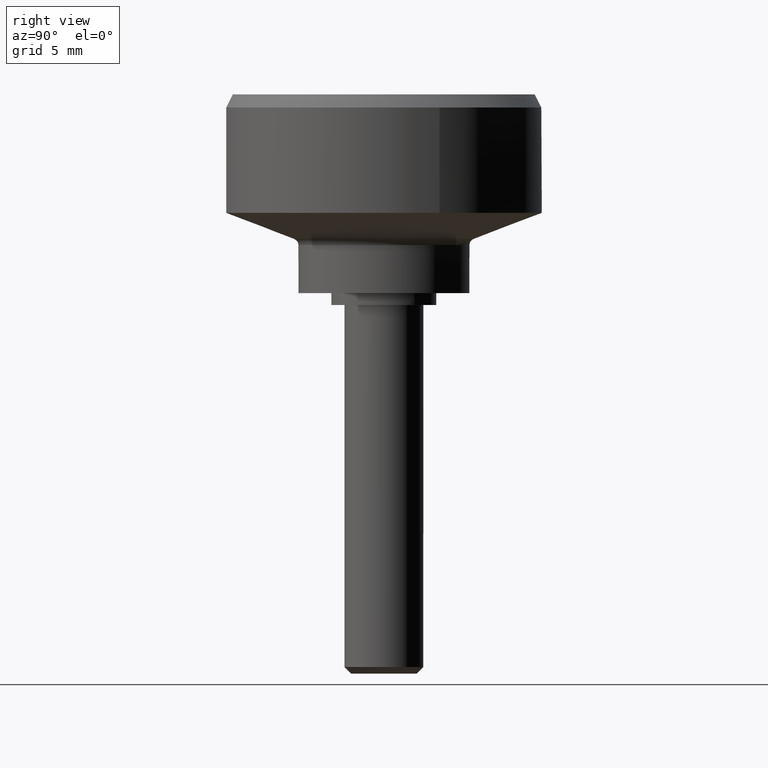
[diagram: clean part render]
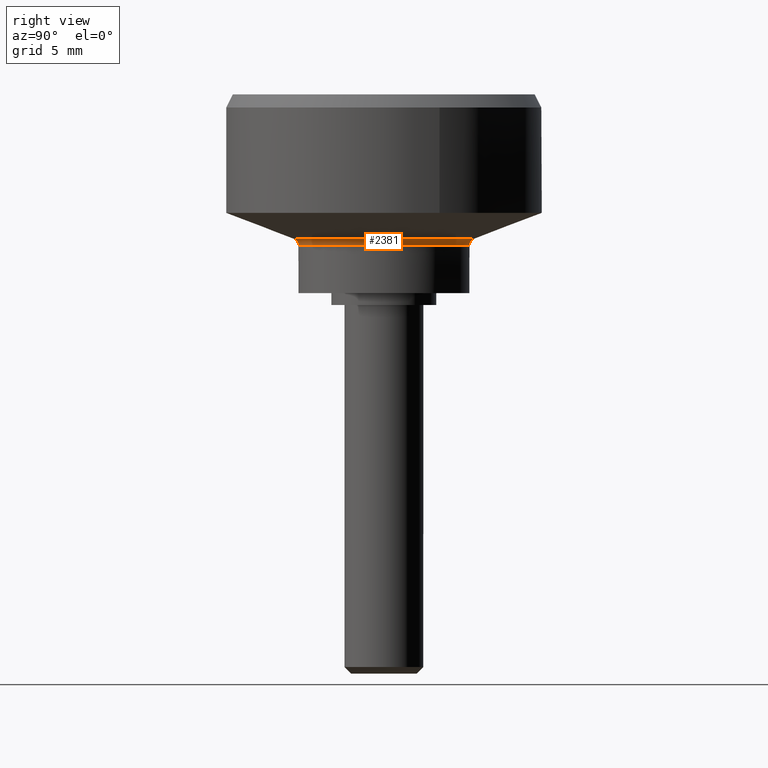
[diagram: same view with one face highlighted and labeled with its STEP entity id]
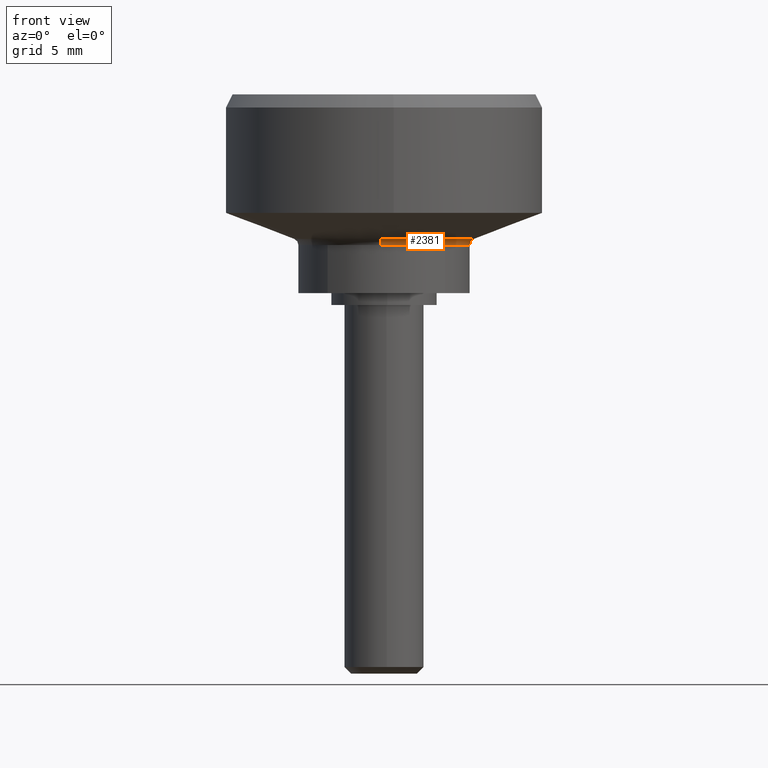
[diagram: same view with one face highlighted and labeled with its STEP entity id]
A machine part, right view. The second image highlights one B-rep face of the part: STEP entity #2381.
A second angle (front view) of the same face is appended — the face is thin or edge-on in the first view.
In plain terms, the highlighted face is a freeform B-spline surface patch.
Its self-contained STEP definition (entity closure, byte-faithful):
#1480=CARTESIAN_POINT('',(-0.126900594161150,6.498761131108108,4.555701999863015));
#1481=VERTEX_POINT('',#1480);
#1495=CARTESIAN_POINT('',(6.500000000000000,0.0,4.555701999999901));
#1496=VERTEX_POINT('',#1495);
#1497=CARTESIAN_POINT('',(-0.126900594161150,6.498761131108108,4.555701999863016));
#1498=CARTESIAN_POINT('',(-0.063456344323026,6.500000000000000,4.555701999999901));
#1499=CARTESIAN_POINT('',(0.0,6.500000000000000,4.555701999999901));
#1500=CARTESIAN_POINT('',(6.500000000000000,6.500000000000000,4.555701999999900));
#1501=CARTESIAN_POINT('',(6.500000000000000,0.0,4.555701999999901));
#1509=(BOUNDED_CURVE()B_SPLINE_CURVE(2,(#1497,#1498,#1499,#1500,#1501),.UNSPECIFIED.,.F.,.U.)B_SPLINE_CURVE_WITH_KNOTS((3,2,3),(0.246562331022470,0.250000000000000,0.500000000000000),.UNSPECIFIED.)CURVE()GEOMETRIC_REPRESENTATION_ITEM()RATIONAL_B_SPLINE_CURVE((0.992055801680602,0.995972520271824,1.0,0.707106781186547,1.0))REPRESENTATION_ITEM(''));
#1510=EDGE_CURVE('',#1481,#1496,#1509,.T.);
#1512=CARTESIAN_POINT('',(4.636128021058326,-4.555910114604740,4.555701999999904));
#1513=VERTEX_POINT('',#1512);
#1514=CARTESIAN_POINT('',(6.500000000000000,0.0,4.555701999999901));
#1515=CARTESIAN_POINT('',(6.500000000000000,-2.659220040137295,4.555701999999902));
#1516=CARTESIAN_POINT('',(4.636128021058326,-4.555910114604741,4.555701999999903));
#1524=(BOUNDED_CURVE()B_SPLINE_CURVE(2,(#1514,#1515,#1516),.UNSPECIFIED.,.F.,.U.)B_SPLINE_CURVE_WITH_KNOTS((3,3),(0.500000000000000,0.623683235681853),.UNSPECIFIED.)CURVE()GEOMETRIC_REPRESENTATION_ITEM()RATIONAL_B_SPLINE_CURVE((1.0,0.855096075951517,0.853569641417545))REPRESENTATION_ITEM(''));
#1525=EDGE_CURVE('',#1496,#1513,#1524,.T.);
#1597=CARTESIAN_POINT('',(-0.244986187355833,-6.495381572163781,4.555701999859737));
#1598=VERTEX_POINT('',#1597);
#1599=CARTESIAN_POINT('',(4.636128021058326,-4.555910114604741,4.555701999999903));
#1600=CARTESIAN_POINT('',(2.725676381799573,-6.500000000000000,4.555701999999900));
#1601=CARTESIAN_POINT('',(0.0,-6.500000000000000,4.555701999999901));
#1602=CARTESIAN_POINT('',(-0.122536626491362,-6.500000000000000,4.555701999999901));
#1603=CARTESIAN_POINT('',(-0.244986187355833,-6.495381572163781,4.555701999859737));
#1611=(BOUNDED_CURVE()B_SPLINE_CURVE(2,(#1599,#1600,#1601,#1602,#1603),.UNSPECIFIED.,.F.,.U.)B_SPLINE_CURVE_WITH_KNOTS((3,2,3),(0.623683235681853,0.750000000000000,0.756613471417402),.UNSPECIFIED.)CURVE()GEOMETRIC_REPRESENTATION_ITEM()RATIONAL_B_SPLINE_CURVE((0.853569641417545,0.852010705235031,1.0,0.992251836276106,0.984913610626814))REPRESENTATION_ITEM(''));
#1612=EDGE_CURVE('',#1513,#1598,#1611,.T.);
#1672=CARTESIAN_POINT('',(4.694013445308249,4.946458076466312,5.021860733314311));
#1673=VERTEX_POINT('',#1672);
#1679=CARTESIAN_POINT('',(-0.133131989355560,6.817879777029487,5.021860706398572));
#1680=VERTEX_POINT('',#1679);
#1681=CARTESIAN_POINT('',(-0.133131989355560,6.817879777029487,5.021860706398573));
#1682=CARTESIAN_POINT('',(-0.066572339783741,6.819179549401331,5.021860733314310));
#1683=CARTESIAN_POINT('',(0.0,6.819179549401331,5.021860733314310));
#1684=CARTESIAN_POINT('',(2.720576776943343,6.819179549401332,5.021860733314311));
#1685=CARTESIAN_POINT('',(4.694013445308250,4.946458076466312,5.021860733314311));
#1693=(BOUNDED_CURVE()B_SPLINE_CURVE(2,(#1681,#1682,#1683,#1684,#1685),.UNSPECIFIED.,.F.,.U.)B_SPLINE_CURVE_WITH_KNOTS((3,2,3),(0.246562330997886,0.250000000000000,0.371049526659110),.UNSPECIFIED.)CURVE()GEOMETRIC_REPRESENTATION_ITEM()RATIONAL_B_SPLINE_CURVE((0.992055801624584,0.995972520243023,1.0,0.858181658003873,0.853699661369434))REPRESENTATION_ITEM(''));
#1694=EDGE_CURVE('',#1680,#1673,#1693,.T.);
#1711=CARTESIAN_POINT('',(-0.257016120606417,-6.814334266405956,5.021860706397108));
#1712=VERTEX_POINT('',#1711);
#1726=CARTESIAN_POINT('',(4.946458076466313,-4.694013445308249,5.021860733314311));
#1727=VERTEX_POINT('',#1726);
#1728=CARTESIAN_POINT('',(4.946458076466313,-4.694013445308249,5.021860733314311));
#1729=CARTESIAN_POINT('',(2.929750745297536,-6.819179549401330,5.021860733314310));
#1730=CARTESIAN_POINT('',(0.0,-6.819179549401331,5.021860733314310));
#1731=CARTESIAN_POINT('',(-0.128553732256057,-6.819179549401331,5.021860733314311));
#1732=CARTESIAN_POINT('',(-0.257016120606417,-6.814334266405956,5.021860706397109));
#1740=(BOUNDED_CURVE()B_SPLINE_CURVE(2,(#1728,#1729,#1730,#1731,#1732),.UNSPECIFIED.,.F.,.U.)B_SPLINE_CURVE_WITH_KNOTS((3,2,3),(0.621049526659110,0.750000000000000,0.756613471435008),.UNSPECIFIED.)CURVE()GEOMETRIC_REPRESENTATION_ITEM()RATIONAL_B_SPLINE_CURVE((0.853699661369434,0.848925123182674,1.0,0.992251836255479,0.984913610587743))REPRESENTATION_ITEM(''));
#1741=EDGE_CURVE('',#1727,#1712,#1740,.T.);
#1841=CARTESIAN_POINT('',(6.819179549401331,0.0,5.021860733314310));
#1842=VERTEX_POINT('',#1841);
#1843=CARTESIAN_POINT('',(6.819179549401331,0.0,5.021860733314310));
#1844=CARTESIAN_POINT('',(6.819179549401332,-2.720576776943322,5.021860733314310));
#1845=CARTESIAN_POINT('',(4.946458076466313,-4.694013445308249,5.021860733314311));
#1853=(BOUNDED_CURVE()B_SPLINE_CURVE(2,(#1843,#1844,#1845),.UNSPECIFIED.,.F.,.U.)B_SPLINE_CURVE_WITH_KNOTS((3,3),(0.500000000000000,0.621049526659109),.UNSPECIFIED.)CURVE()GEOMETRIC_REPRESENTATION_ITEM()RATIONAL_B_SPLINE_CURVE((1.0,0.858181658003874,0.853699661369434))REPRESENTATION_ITEM(''));
#1854=EDGE_CURVE('',#1842,#1727,#1853,.T.);
#1856=CARTESIAN_POINT('',(4.694013445308249,4.946458076466313,5.021860733314311));
#1857=CARTESIAN_POINT('',(6.819179549401330,2.929750745297536,5.021860733314310));
#1858=CARTESIAN_POINT('',(6.819179549401331,0.0,5.021860733314310));
#1866=(BOUNDED_CURVE()B_SPLINE_CURVE(2,(#1856,#1857,#1858),.UNSPECIFIED.,.F.,.U.)B_SPLINE_CURVE_WITH_KNOTS((3,3),(0.371049526659110,0.500000000000000),.UNSPECIFIED.)CURVE()GEOMETRIC_REPRESENTATION_ITEM()RATIONAL_B_SPLINE_CURVE((0.853699661369434,0.848925123182674,1.0))REPRESENTATION_ITEM(''));
#1867=EDGE_CURVE('',#1673,#1842,#1866,.T.);
#2299=CARTESIAN_POINT('',(-0.126915509126091,6.499543325148066,4.527742670697206));
#2300=CARTESIAN_POINT('',(0.059098448947095,6.503175588987599,4.527742670697207));
#2301=CARTESIAN_POINT('',(0.245015673746785,6.496163352437492,4.527742670697207));
#2302=CARTESIAN_POINT('',(6.741179026184276,6.251147678690709,4.527742670697206));
#2303=CARTESIAN_POINT('',(6.496163352437492,-0.245015673746785,4.527742670697207));
#2304=CARTESIAN_POINT('',(6.251147678690709,-6.741179026184276,4.527742670697206));
#2305=CARTESIAN_POINT('',(-0.245015673746783,-6.496163352437492,4.527742670697207));
#2306=CARTESIAN_POINT('',(-0.126893367949202,6.498409440570431,4.547992194967632));
#2307=CARTESIAN_POINT('',(0.059088138865837,6.502041070739605,4.547992194967632));
#2308=CARTESIAN_POINT('',(0.244972929283083,6.495030057516504,4.547992194967633));
#2309=CARTESIAN_POINT('',(6.740002986799584,6.250057128233419,4.547992194967633));
#2310=CARTESIAN_POINT('',(6.495030057516504,-0.244972929283083,4.547992194967633));
#2311=CARTESIAN_POINT('',(6.250057128233421,-6.740002986799584,4.547992194967633));
#2312=CARTESIAN_POINT('',(-0.244972929283081,-6.495030057516504,4.547992194967633));
#2313=CARTESIAN_POINT('',(-0.126903318293190,6.498919013374364,4.568267047721569));
#2314=CARTESIAN_POINT('',(0.059092772262497,6.502550928317834,4.568267047721569));
#2315=CARTESIAN_POINT('',(0.244992138836375,6.495539365326100,4.568267047721569));
#2316=CARTESIAN_POINT('',(6.740531504162474,6.250547226489726,4.568267047721569));
#2317=CARTESIAN_POINT('',(6.495539365326100,-0.244992138836375,4.568267047721569));
#2318=CARTESIAN_POINT('',(6.250547226489726,-6.740531504162473,4.568267047721569));
#2319=CARTESIAN_POINT('',(-0.244992138836374,-6.495539365326100,4.568267047721569));
#2320=CARTESIAN_POINT('',(-0.127077282200731,6.507827979361757,4.922736462474464));
#2321=CARTESIAN_POINT('',(0.059173778887923,6.511464873072718,4.922736462474467));
#2322=CARTESIAN_POINT('',(0.245327983401845,6.504443698363086,4.922736462474465));
#2323=CARTESIAN_POINT('',(6.749771681764931,6.259115714961239,4.922736462474465));
#2324=CARTESIAN_POINT('',(6.504443698363086,-0.245327983401846,4.922736462474465));
#2325=CARTESIAN_POINT('',(6.259115714961243,-6.749771681764929,4.922736462474465));
#2326=CARTESIAN_POINT('',(-0.245327983401844,-6.504443698363086,4.922736462474465));
#2327=CARTESIAN_POINT('',(-0.133665679096897,6.845230172086364,5.031568072334071));
#2328=CARTESIAN_POINT('',(0.062241678471609,6.849055622703969,5.031568072334070));
#2329=CARTESIAN_POINT('',(0.258047157878950,6.841670431036600,5.031568072334069));
#2330=CARTESIAN_POINT('',(7.099717588915548,6.583623273157648,5.031568072334070));
#2331=CARTESIAN_POINT('',(6.841670431036600,-0.258047157878951,5.031568072334069));
#2332=CARTESIAN_POINT('',(6.583623273157650,-7.099717588915548,5.031568072334070));
#2333=CARTESIAN_POINT('',(-0.258047157878949,-6.841670431036600,5.031568072334069));
#2341=(BOUNDED_SURFACE()B_SPLINE_SURFACE(2,2,((#2299,#2306,#2313,#2320,#2327),(#2300,#2307,#2314,#2321,#2328),(#2301,#2308,#2315,#2322,#2329),(#2302,#2309,#2316,#2323,#2330),(#2303,#2310,#2317,#2324,#2331),(#2304,#2311,#2318,#2325,#2332),(#2305,#2312,#2319,#2326,#2333)),.UNSPECIFIED.,.F.,.F.,.U.)B_SPLINE_SURFACE_WITH_KNOTS((3,2,2,3),(3,2,3),(0.0,0.453747997036988,11.797458741167290,23.141169485297581),(0.0,0.045089118728773,0.682172368878807),.UNSPECIFIED.)GEOMETRIC_REPRESENTATION_ITEM()RATIONAL_B_SPLINE_SURFACE(((0.951118272945197,0.963429535848258,0.977505821353428,0.778616023271144,0.932096407394577),(0.961605771895209,0.974052784852118,0.988284282420452,0.787201427377861,0.942374161877823),(0.973005226330319,0.985599793681350,1.0,0.796533387589541,0.953545633215791),(0.688018593668120,0.696924297648145,0.707106781186548,0.563234159806057,0.674258583417706),(0.973005226330319,0.985599793681350,1.0,0.796533387589541,0.953545633215791),(0.688018593668120,0.696924297648145,0.707106781186548,0.563234159806057,0.674258583417706),(0.973005226330319,0.985599793681350,1.0,0.796533387589541,0.953545633215791)))REPRESENTATION_ITEM('')SURFACE());
#2342=ORIENTED_EDGE('',*,*,#1510,.F.);
#2343=CARTESIAN_POINT('',(-0.126900594161150,6.498761131108108,4.555701999863015));
#2344=CARTESIAN_POINT('',(-0.126900594151719,6.498761131104850,4.561985515924727));
#2345=CARTESIAN_POINT('',(-0.126903676964677,6.498919006370634,4.568267047721569));
#2346=CARTESIAN_POINT('',(-0.127067151250199,6.507290758605430,4.901361833639606));
#2347=CARTESIAN_POINT('',(-0.133131989355560,6.817879777029487,5.021860706398571));
#2355=(BOUNDED_CURVE()B_SPLINE_CURVE(2,(#2343,#2344,#2345,#2346,#2347),.UNSPECIFIED.,.F.,.U.)B_SPLINE_CURVE_WITH_KNOTS((3,2,3),(-2.039238102310271,-2.0,-0.314467723271109),.UNSPECIFIED.)CURVE()GEOMETRIC_REPRESENTATION_ITEM()RATIONAL_B_SPLINE_CURVE((0.968868884557692,0.973100923156689,0.977505800795127,0.788287592026524,0.918002781482227))REPRESENTATION_ITEM(''));
#2356=EDGE_CURVE('',#1481,#1680,#2355,.T.);
#2357=ORIENTED_EDGE('',*,*,#2356,.T.);
#2358=ORIENTED_EDGE('',*,*,#1694,.T.);
#2359=ORIENTED_EDGE('',*,*,#1867,.T.);
#2360=ORIENTED_EDGE('',*,*,#1854,.T.);
#2361=ORIENTED_EDGE('',*,*,#1741,.T.);
#2362=CARTESIAN_POINT('',(-0.244986187355833,-6.495381572163781,4.555701999859737));
#2363=CARTESIAN_POINT('',(-0.244986187354442,-6.495381572160308,4.561985515921451));
#2364=CARTESIAN_POINT('',(-0.244992138836375,-6.495539365326100,4.568267047721569));
#2365=CARTESIAN_POINT('',(-0.245307731857886,-6.503906763987881,4.901361833633763));
#2366=CARTESIAN_POINT('',(-0.257016120606417,-6.814334266405956,5.021860706397108));
#2374=(BOUNDED_CURVE()B_SPLINE_CURVE(2,(#2362,#2363,#2364,#2365,#2366),.UNSPECIFIED.,.F.,.U.)B_SPLINE_CURVE_WITH_KNOTS((3,2,3),(-2.039238102330646,-2.0,-0.314467723294948),.UNSPECIFIED.)CURVE()GEOMETRIC_REPRESENTATION_ITEM()RATIONAL_B_SPLINE_CURVE((0.991164332493163,0.995493758055305,1.0,0.806427533614622,0.939127707203202))REPRESENTATION_ITEM(''));
#2375=EDGE_CURVE('',#1598,#1712,#2374,.T.);
#2376=ORIENTED_EDGE('',*,*,#2375,.F.);
#2377=ORIENTED_EDGE('',*,*,#1612,.F.);
#2378=ORIENTED_EDGE('',*,*,#1525,.F.);
#2379=EDGE_LOOP('',(#2342,#2357,#2358,#2359,#2360,#2361,#2376,#2377,#2378));
#2380=FACE_OUTER_BOUND('',#2379,.T.);
#2381=ADVANCED_FACE('',(#2380),#2341,.F.);